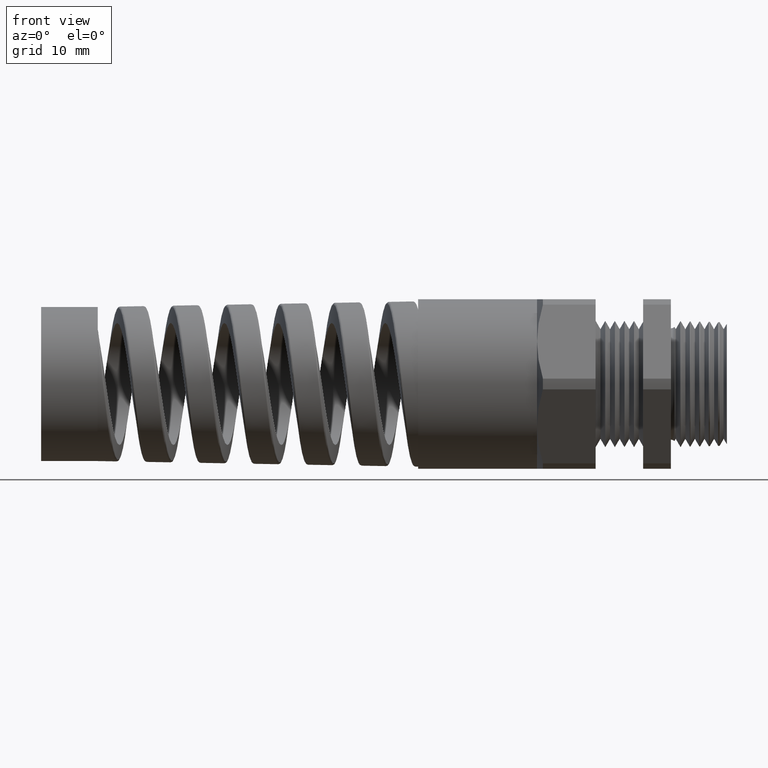
[diagram: clean part render]
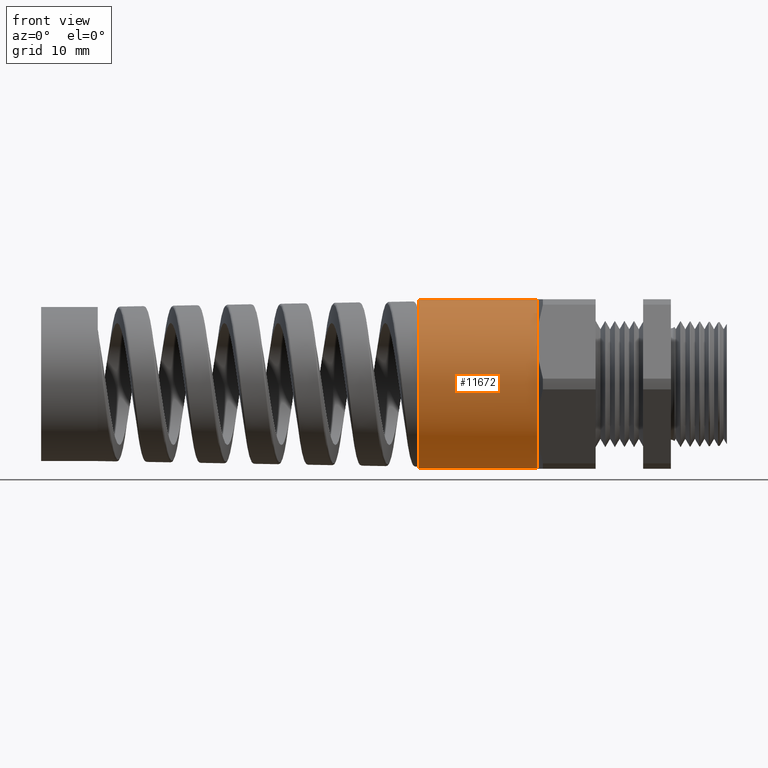
[diagram: same view with one face highlighted and labeled with its STEP entity id]
A machine part, front view. The second image highlights one B-rep face of the part: STEP entity #11672.
In plain terms, the highlighted cylindrical surface (partial cylindrical patch) has radius 13.462 mm, axis along (-1, 0, 0).
Its self-contained STEP definition (entity closure, byte-faithful):
#473 = CARTESIAN_POINT ( 'NONE',  ( -0.8375000000000000200, 0.0000000000000000000, 0.0000000000000000000 ) ) ;
#474 = AXIS2_PLACEMENT_3D ( 'NONE', #473, #538, #537 ) ;
#475 = CIRCLE ( 'NONE', #474, 0.5299999999999996900 ) ;
#477 = DIRECTION ( 'NONE',  ( 0.0000000000000000000, 0.0000000000000000000, 1.000000000000000000 ) ) ;
#478 = DIRECTION ( 'NONE',  ( -1.000000000000000000, 0.0000000000000000000, 0.0000000000000000000 ) ) ;
#479 = CARTESIAN_POINT ( 'NONE',  ( -0.8375000000000000200, 0.0000000000000000000, 0.0000000000000000000 ) ) ;
#480 = AXIS2_PLACEMENT_3D ( 'NONE', #479, #478, #477 ) ;
#485 = CIRCLE ( 'NONE', #480, 0.5299999999999996900 ) ;
#537 = DIRECTION ( 'NONE',  ( 0.0000000000000000000, 0.0000000000000000000, 1.000000000000000000 ) ) ;
#538 = DIRECTION ( 'NONE',  ( -1.000000000000000000, 0.0000000000000000000, 0.0000000000000000000 ) ) ;
#769 = FACE_OUTER_BOUND ( 'NONE', #4036, .T. ) ;
#799 = DIRECTION ( 'NONE',  ( 0.0000000000000000000, 0.0000000000000000000, 1.000000000000000000 ) ) ;
#800 = DIRECTION ( 'NONE',  ( -1.000000000000000000, 0.0000000000000000000, 0.0000000000000000000 ) ) ;
#801 = AXIS2_PLACEMENT_3D ( 'NONE', #804, #800, #799 ) ;
#802 = CYLINDRICAL_SURFACE ( 'NONE', #801, 0.5299999999999996900 ) ;
#804 = CARTESIAN_POINT ( 'NONE',  ( -0.7238591030180623300, 0.0000000000000000000, 0.0000000000000000000 ) ) ;
#1739 = CIRCLE ( 'NONE', #1810, 0.5300000000000001400 ) ;
#1742 = DIRECTION ( 'NONE',  ( 0.0000000000000000000, 0.0000000000000000000, 1.000000000000000000 ) ) ;
#1743 = DIRECTION ( 'NONE',  ( -1.000000000000000000, 0.0000000000000000000, 0.0000000000000000000 ) ) ;
#1744 = CARTESIAN_POINT ( 'NONE',  ( -0.8375000000000000200, 0.0000000000000000000, 0.0000000000000000000 ) ) ;
#1745 = AXIS2_PLACEMENT_3D ( 'NONE', #1744, #1743, #1742 ) ;
#1750 = CIRCLE ( 'NONE', #1745, 0.5299999999999996900 ) ;
#1807 = DIRECTION ( 'NONE',  ( 0.0000000000000000000, 0.0000000000000000000, 1.000000000000000000 ) ) ;
#1808 = DIRECTION ( 'NONE',  ( -1.000000000000000000, 0.0000000000000000000, 0.0000000000000000000 ) ) ;
#1809 = CARTESIAN_POINT ( 'NONE',  ( -1.581476290660619200, 0.0000000000000000000, 0.0000000000000000000 ) ) ;
#1810 = AXIS2_PLACEMENT_3D ( 'NONE', #1809, #1808, #1807 ) ;
#2818 = VERTEX_POINT ( 'NONE', #9844 ) ;
#2852 = VERTEX_POINT ( 'NONE', #9899 ) ;
#3159 = VERTEX_POINT ( 'NONE', #11380 ) ;
#3177 = EDGE_CURVE ( 'NONE', #3159, #3178, #11414, .T. ) ;
#3178 = VERTEX_POINT ( 'NONE', #11405 ) ;
#3181 = VERTEX_POINT ( 'NONE', #11399 ) ;
#3183 = EDGE_CURVE ( 'NONE', #3184, #3181, #11398, .T. ) ;
#3184 = VERTEX_POINT ( 'NONE', #11394 ) ;
#3998 = EDGE_CURVE ( 'NONE', #2852, #2818, #485, .T. ) ;
#4004 = EDGE_CURVE ( 'NONE', #3159, #2852, #475, .T. ) ;
#4032 = ORIENTED_EDGE ( 'NONE', *, *, #3177, .F. ) ;
#4034 = ORIENTED_EDGE ( 'NONE', *, *, #4004, .T. ) ;
#4036 = EDGE_LOOP ( 'NONE', ( #4032, #4034, #10477, #11703, #11704, #11702 ) ) ;
#9844 = CARTESIAN_POINT ( 'NONE',  ( -0.8375000000000000200, -0.4589934640057524200, 0.2650000000000001200 ) ) ;
#9899 = CARTESIAN_POINT ( 'NONE',  ( -0.8375000000000000200, -0.4589934640057524200, -0.2650000000000001200 ) ) ;
#10477 = ORIENTED_EDGE ( 'NONE', *, *, #3998, .T. ) ;
#11380 = CARTESIAN_POINT ( 'NONE',  ( -0.8375000000000000200, 0.0000000000000000000, -0.5300000000000001400 ) ) ;
#11394 = CARTESIAN_POINT ( 'NONE',  ( -0.8375000000000000200, 0.0000000000000000000, 0.5299999999999996900 ) ) ;
#11395 = DIRECTION ( 'NONE',  ( -1.000000000000000000, 0.0000000000000000000, 0.0000000000000000000 ) ) ;
#11396 = VECTOR ( 'NONE', #11395, 39.37007874015748100 ) ;
#11397 = CARTESIAN_POINT ( 'NONE',  ( -0.7238591030180623300, 0.0000000000000000000, 0.5299999999999996900 ) ) ;
#11398 = LINE ( 'NONE', #11397, #11396 ) ;
#11399 = CARTESIAN_POINT ( 'NONE',  ( -1.581476290660619200, 0.0000000000000000000, 0.5300000000000001400 ) ) ;
#11405 = CARTESIAN_POINT ( 'NONE',  ( -1.581476290660619200, 6.490628035480972400E-017, -0.5300000000000000300 ) ) ;
#11406 = DIRECTION ( 'NONE',  ( -1.000000000000000000, 0.0000000000000000000, 0.0000000000000000000 ) ) ;
#11407 = VECTOR ( 'NONE', #11406, 39.37007874015748100 ) ;
#11408 = CARTESIAN_POINT ( 'NONE',  ( -0.7238591030180623300, 6.490628035480968700E-017, -0.5299999999999996900 ) ) ;
#11414 = LINE ( 'NONE', #11408, #11407 ) ;
#11672 = ADVANCED_FACE ( 'NONE', ( #769 ), #802, .T. ) ;
#11696 = EDGE_CURVE ( 'NONE', #2818, #3184, #1750, .T. ) ;
#11701 = EDGE_CURVE ( 'NONE', #3178, #3181, #1739, .T. ) ;
#11702 = ORIENTED_EDGE ( 'NONE', *, *, #11701, .F. ) ;
#11703 = ORIENTED_EDGE ( 'NONE', *, *, #11696, .T. ) ;
#11704 = ORIENTED_EDGE ( 'NONE', *, *, #3183, .T. ) ;